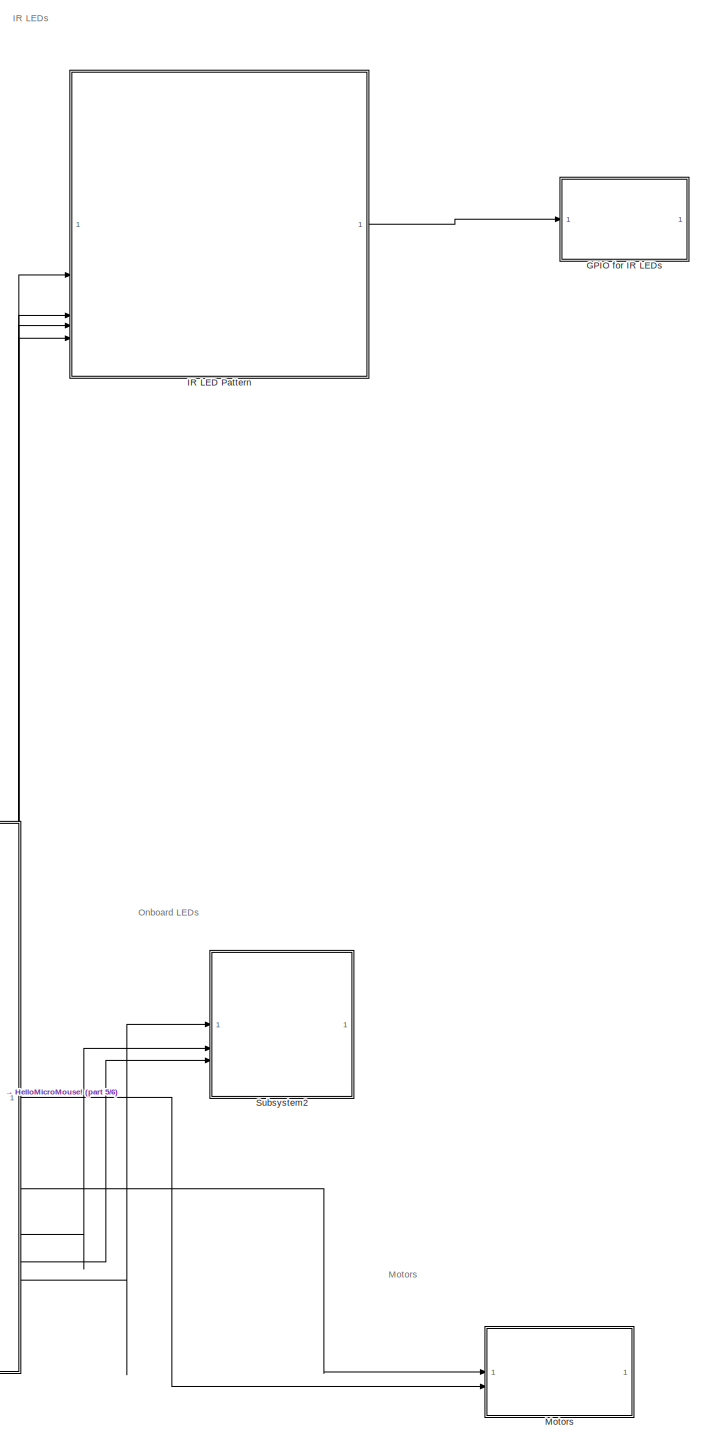
[diagram: root canvas - part 1/6, right side, full height]
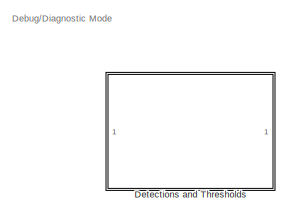
[diagram: root canvas - part 2/6, middle right region]
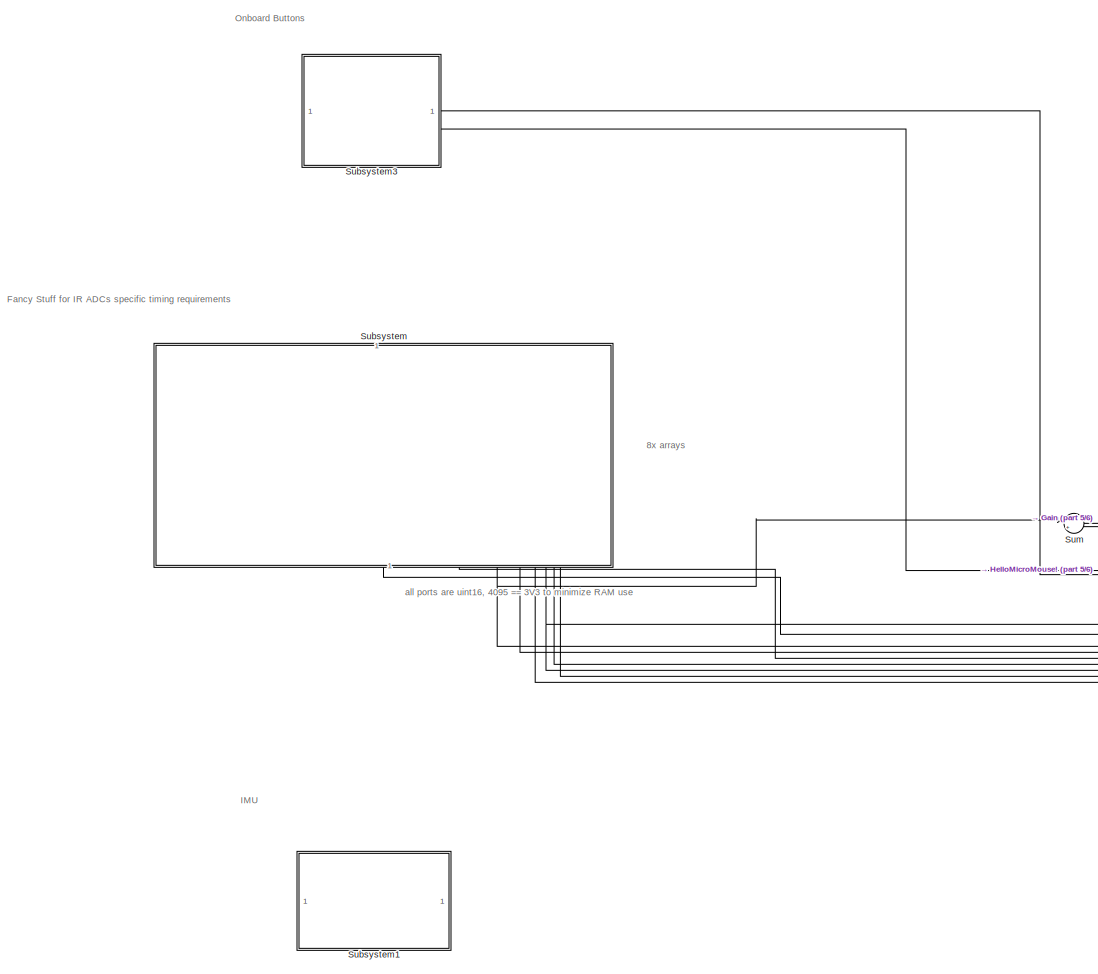
[diagram: root canvas - part 3/6, bottom left region]
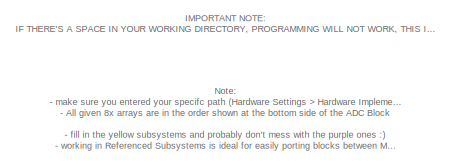
[diagram: root canvas - part 4/6, middle left region]
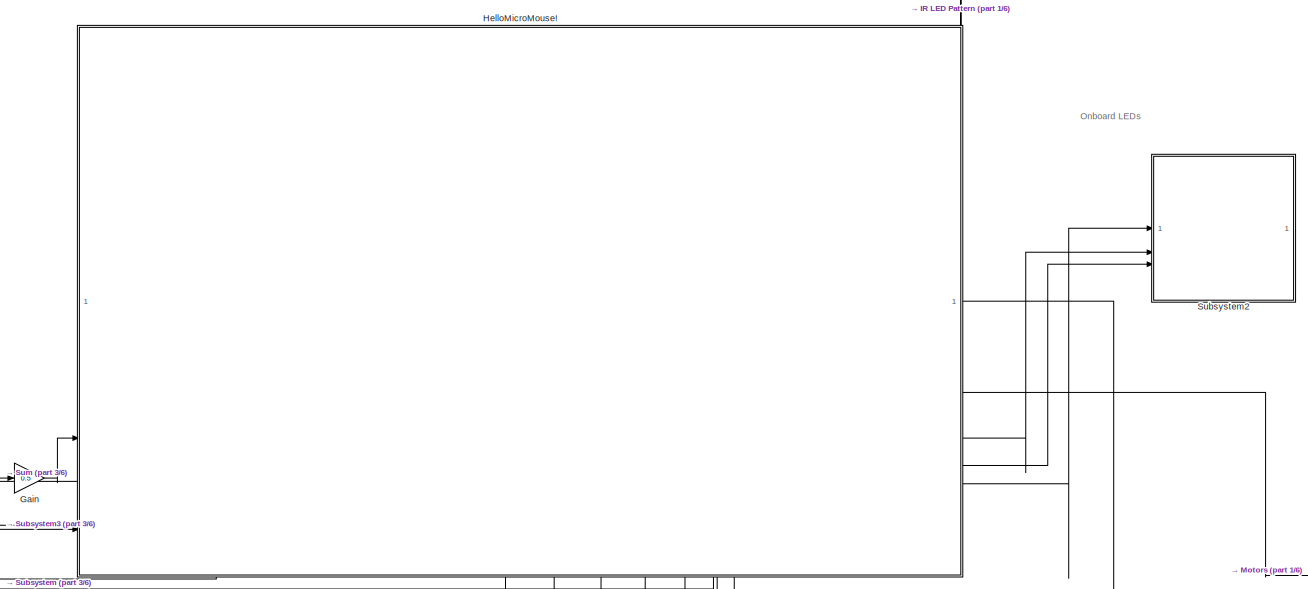
[diagram: root canvas - part 5/6, central region]
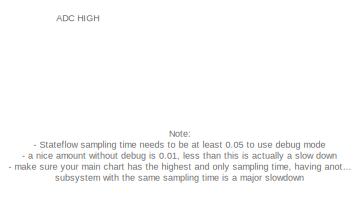
[diagram: root canvas - part 6/6, bottom center region]
MODEL slx_e1ad837b656b
KIND model
CONFIG AbsTol = auto
CONFIG EnableMultiTasking = on
CONFIG FixedStep = auto
CONFIG MaxStep = auto
CONFIG MinStep = auto
CONFIG RelTol = 1e-3
CONFIG SampleTimeConstraint = Unconstrained
CONFIG SolverName = FixedStepAuto
CONFIG StartTime = 0.0
CONFIG StopTime = 10.0
BLOCK [SubSystem] Detections and Thresholds
  ReferencedSubsystem = DiagnosticMode
BLOCK [SubSystem] GPIO for IR LEDs
  ReferencedSubsystem = IR_LEDs
  SystemSampleTime = samplingTime
  TreatAsAtomicUnit = on
BLOCK [Gain] Gain
  Gain = 0.5
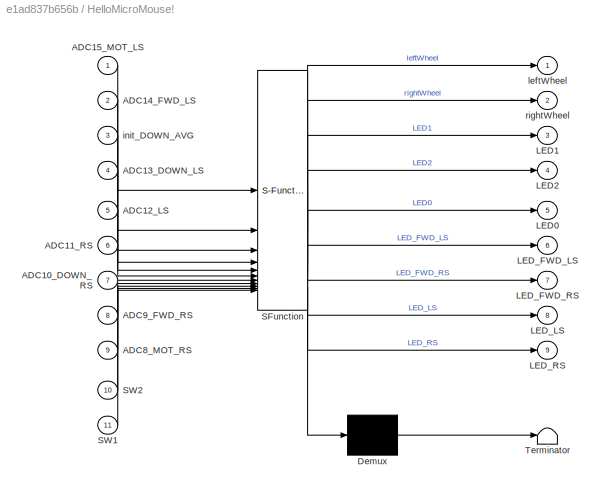
BLOCK [SubSystem] HelloMicroMouse!
  ErrorFcn = Stateflow.Translate.translate
  PermitHierarchicalResolution = ExplicitOnly
  PortSchema = {"entries":[{"content":{"sides":[{"content":{"connectorIds":["In11","In10","In3"]},"type":"ConnectorPlacement.EquallySpacedRectSide","uuid":"f52daa4f-6374-42e5-9ef1-0ccc99d09b58"},{"content":{"connectorIds":["Out5","Out3","Out4","Out2","Out1"],"side":"RIGHT"},"type":"ConnectorPlacement.EquallySpacedRectSide","uuid":"94b478cc-4dde-45c7-a588-77cf2b43cdb7"},{"content":{"connectorIds":["Out6","Out7","...<+500ch>
  SFBlockType = Chart
  SystemSampleTime = 0.05
  TreatAsAtomicUnit = on
BLOCK [Demux] HelloMicroMouse!/ Demux 
  Outputs = 1
BLOCK [S-Function] HelloMicroMouse!/ SFunction 
  EnableBusSupport = on
  FunctionName = sf_sfun
  PortCounts = [11 10]
  SFcnIsStateOwnerBlock = off
  SFunctionDeploymentMode = off
  Tag = Stateflow S-Function 2
BLOCK [Terminator] HelloMicroMouse!/ Terminator 
BLOCK [Inport] HelloMicroMouse!/ADC10_DOWN_RS
  Port = 7
BLOCK [Inport] HelloMicroMouse!/ADC11_RS
  Port = 6
BLOCK [Inport] HelloMicroMouse!/ADC12_LS
  Port = 5
BLOCK [Inport] HelloMicroMouse!/ADC13_DOWN_LS
  Port = 4
BLOCK [Inport] HelloMicroMouse!/ADC14_FWD_LS
  Port = 2
BLOCK [Inport] HelloMicroMouse!/ADC15_MOT_LS
BLOCK [Inport] HelloMicroMouse!/ADC8_MOT_RS
  Port = 9
BLOCK [Inport] HelloMicroMouse!/ADC9_FWD_RS
  Port = 8
BLOCK [Outport] HelloMicroMouse!/LED0
  Port = 5
BLOCK [Outport] HelloMicroMouse!/LED1
  Port = 3
BLOCK [Outport] HelloMicroMouse!/LED2
  Port = 4
BLOCK [Outport] HelloMicroMouse!/LED_FWD_LS
  Port = 6
BLOCK [Outport] HelloMicroMouse!/LED_FWD_RS
  Port = 7
BLOCK [Outport] HelloMicroMouse!/LED_LS
  Port = 8
BLOCK [Outport] HelloMicroMouse!/LED_RS
  Port = 9
BLOCK [Inport] HelloMicroMouse!/SW1
  Port = 11
BLOCK [Inport] HelloMicroMouse!/SW2
  Port = 10
BLOCK [Inport] HelloMicroMouse!/init_DOWN_AVG
  Port = 3
BLOCK [Outport] HelloMicroMouse!/leftWheel
BLOCK [Outport] HelloMicroMouse!/rightWheel
  Port = 2
BLOCK [SubSystem] IR LED Pattern
  ReferencedSubsystem = IR_LED_Pattern
BLOCK [SubSystem] Motors
  PortSchema = {"entries":[{"content":{"sides":[{"content":{"connectorIds":["In2","In1"]},"type":"ConnectorPlacement.EquallySpacedRectSide","uuid":"b3741f01-871a-479c-9206-f0581f668097"},{"content":{"side":"RIGHT"},"type":"ConnectorPlacement.EquallySpacedRectSide","uuid":"4e24163a-f10e-40fa-a35f-86add3e4876d"},{"content":{"side":"TOP"},"type":"ConnectorPlacement.EquallySpacedRectSide","uuid":"20b900cb-8f31-42f3-...<+204ch>
  ReferencedSubsystem = Motors
BLOCK [SubSystem] Subsystem
  PortSchema = {"entries":[{"content":{"sides":[{"content":{},"type":"ConnectorPlacement.EquallySpacedRectSide","uuid":"be6b81d5-7a49-4e34-b35f-0c07892094fc"},{"content":{"connectorIds":["Out1","Out2","Out3","Out4","Out5","Out6","Out7","Out8"],"side":"RIGHT"},"type":"ConnectorPlacement.EquallySpacedRectSide","uuid":"5e22590a-b7c0-4c63-8de4-8d81fd6c3849"},{"content":{"connectorIds":["Out12","Out10","Out11"],"side...<+440ch>
  ReferencedSubsystem = ADC_Block
BLOCK [SubSystem] Subsystem1
  ReferencedSubsystem = IMU
BLOCK [SubSystem] Subsystem2
  ReferencedSubsystem = LEDs
BLOCK [SubSystem] Subsystem3
  ReferencedSubsystem = SWs
BLOCK [Sum] Sum
  Inputs = |++
ANNOTATION (root): 8x arrays
ANNOTATION (root): IMPORTANT NOTE: IF THERE'S A SPACE IN YOUR WORKING DIRECTORY, PROGRAMMING WILL NOT WORK, THIS INCLUDES A SPACE IN YOUR PC's USERNAME (Space is an argument delimiter for terminal things)
ANNOTATION (root): Note: - Stateflow sampling time needs to be at least 0.05 to use debug mode - a nice amount without debug is 0.01, less than this is actually a slow down - make sure your main chart has the highest and only sampling time, having another subsystem with the same sampling time is a major slowdown
ANNOTATION (root): ADC HIGH
ANNOTATION (root): Debug/Diagnostic Mode
ANNOTATION (root): Fancy Stuff for IR ADCs specific timing requirements
ANNOTATION (root): IMU
ANNOTATION (root): IR LEDs
ANNOTATION (root): Motors
ANNOTATION (root): Note: - make sure you entered your specifc path (Hardware Settings > Hardware Implementation) to the given MicroMouseProgramming.ioc - All given 8x arrays are in the order shown at the bottom side of the ADC Block - fill in the yellow subsystems and probably don't mess with the purple ones :) - working in Referenced Subsystems is ideal for easily porting blocks between MATLAB instances, and openin...<+127ch>
ANNOTATION (root): Onboard Buttons
ANNOTATION (root): Onboard LEDs
ANNOTATION (root): all ports are uint16, 4095 == 3V3 to minimize RAM use
LINE Gain:1 -> HelloMicroMouse!:3
LINE HelloMicroMouse!:1 -> Motors:2
LINE HelloMicroMouse!:2 -> Motors:1
LINE HelloMicroMouse!:3 -> Subsystem2:2
LINE HelloMicroMouse!:4 -> Subsystem2:3
LINE HelloMicroMouse!:5 -> Subsystem2:1
LINE HelloMicroMouse!:6 -> IR LED Pattern:2
LINE HelloMicroMouse!:7 -> IR LED Pattern:7
LINE HelloMicroMouse!:8 -> IR LED Pattern:4
LINE HelloMicroMouse!:9 -> IR LED Pattern:5
LINE IR LED Pattern:1 -> GPIO for IR LEDs:1
LINE Subsystem3:1 -> HelloMicroMouse!:11
LINE Subsystem3:2 -> HelloMicroMouse!:10
LINE Subsystem:1 -> HelloMicroMouse!:9
LINE Subsystem:2 -> HelloMicroMouse!:8
NET Subsystem:3 -> HelloMicroMouse!:7, Sum:1
LINE Subsystem:4 -> HelloMicroMouse!:6
LINE Subsystem:5 -> HelloMicroMouse!:5
NET Subsystem:6 -> HelloMicroMouse!:4, Sum:2
LINE Subsystem:7 -> HelloMicroMouse!:2
LINE Subsystem:8 -> HelloMicroMouse!:1
LINE Sum:1 -> Gain:1
note: NET lines group one-source signal fan-out (src -> all destinations, sorted); 1:1 wires keep LINE
CHART HelloMicroMouse! states=15 transitions=26
  STATE_LABEL 'Calibration_Sides\nentry:\n    counter = 0\n    sum_LEFT = 0;\n    sum_RIGHT = 0;\n    min_LEFT = ADC12_LS;\n    min_RIGHT = ADC11_RS;\nduring:\n    % Collect ADC values for averaging\n    if counter < 100\n        min_LEFT = min(min_LEFT, ADC12_LS);\n        min_RIGHT = min(min_RIGHT, ADC11_RS);\n        sum_LEFT = sum_LEFT + min_LEFT;\n        sum_RIGHT = sum_RIGHT + min_RIGHT;\n        counter = counter + 1;...<+288ch>'
  STATE_LABEL 'CalibrationForward\nentry:\ncounter = 0\nsum_FWD_LEFT = 0;\nsum_FWD_RIGHT = 0;\nleftWheel = 75;\nrightWheel = -75;\nLED_FWD_RS = 1;\nLED_FWD_LS = 1;\nduring:\n    % Collect ADC values for averaging\n    leftWheel = leftWheel*(-1);\n    rightWheel = rightWheel*(-1);\n    if counter < 100\n        sum_FWD_LEFT = sum_FWD_LEFT + ADC14_FWD_LS;\n        sum_FWD_RIGHT = sum_FWD_RIGHT + ADC9_FWD_RS;\n        counter = co...<+476ch>'
  STATE_LABEL 'ButtonPressed3\nentry:\nLED0 = ~LED0;\nLED1 = ~LED1;\nLED2 = ~LED2;\n'
  STATE_LABEL 'Driving\nentry:\ntimer = 0;\nduring:\ntimer = timer +1;\n'
  STATE_LABEL 'Turning_Right_Adjustment\nentry:\nleftWheel = 70;\nrightWheel = 75;\n'
  STATE_LABEL 'Forward\nentry:\nLED0 = false;\nLED1 = false;\nLED2 = false;\n% if abs(ADC13_DOWN_LS - ADC10_DOWN_RS) > down_error\n%    error = true;\n%    check = max(ADC13_DOWN_LS - thresh_down_l, ADC10_DOWN_RS - thresh_down_r)\n%end\nleftWheel = normal_speed_LEFT;\nrightWheel = normal_speed_RIGHT;\nexit:\n% during:\n% curr_d_left = ADC13_DOWN_LS;\n% curr_d_right = ADC10_DOWN_RS;\n% if abs(curr_d_left - curr_d_right) > down_...<+114ch>'  <repeated x3 — deduplicated; at blocks: HelloMicroMouse!>
  STATE_LABEL 'Turning_Left_Adjustment\nentry:\nrightWheel = 70;\nleftWheel = 75;'
  STATE_LABEL '[ADC13_DOWN_LS > thresh_DOWN_LEFT ]'
  STATE_LABEL '[ADC10_DOWN_RS<thresh_DOWN_RIGHT && ADC13_DOWN_LS< thresh_DOWN_LEFT]'
  STATE_LABEL '[ADC10_DOWN_RS > thresh_DOWN_RIGHT]'
  STATE_LABEL '[ADC13_DOWN_LS > thresh_DOWN_LEFT ]'
  STATE_LABEL '[ADC10_DOWN_RS > thresh_DOWN_RIGHT]'
  STATE_LABEL '[ADC10_DOWN_RS<thresh_DOWN_RIGHT && ADC13_DOWN_LS< thresh_DOWN_LEFT]'
  STATE_LABEL 'turnLeft\nentry:\nLED0 = true;\nLED1 = false;\nLED2 = false;\nleftWheel = 0;\nrightWheel = 85;'
  STATE_LABEL 'CrossDetection\nentry:\n    leftWheel = 0;\n    rightWheel = 0;\n    LED0 = true;\n    LED1 = true;\n    LED2 = true;\n    LEDtimer = 0;\n    LEDtimer1 = 0;\n    processDone = 0;\n    frontClear = false;\n    leftClear = false;\n    rightClear = false;\nduring:\n% Control the LEDs\nLED_LS = 1;\nLED_RS = 1;\nLED_FWD_RS = 0;  % Only turn these on after processing side sensors\nLED_FWD_LS = 0;\n% Update LED timer only ...<+1493ch>'
  STATE_LABEL 'turnRight\nentry:\nLED0 = false;\nLED1 = false;\nLED2 = true;\nleftWheel = 85;\nrightWheel = 0;'
  STATE_LABEL 'turnBack\nentry:\nLED0 = false;\nLED1 = true;\nLED2 = false;\nleftWheel =-75;\nrightWheel = 75;'
  STATE_LABEL 'after(2100,msec)'
  STATE_LABEL 'after(1300,msec)'
  STATE_LABEL '[init_DOWN_AVG<thresh_DOWN_AVG && timer >=25 ]'
  STATE_LABEL '[crossroadCondition == 7]'
  STATE_LABEL '[crossroadCondition == 1]'
  STATE_LABEL 'after(1300,msec)'
  STATE_LABEL '[crossroadCondition == 3]'
  STATE_LABEL '[crossroadCondition == 5]'
  STATE_LABEL '[crossroadCondition == 6]'
  STATE_LABEL '[crossroadCondition == 2]'
  STATE_LABEL '[crossroadCondition == 4]'
  STATE_LABEL 'Driving\nentry:\ntimer = 0;\nduring:\ntimer = timer +1;\n'
  STATE_LABEL 'Turning_Right_Adjustment\nentry:\nleftWheel = 70;\nrightWheel = 75;\n'
  STATE_LABEL 'Turning_Left_Adjustment\nentry:\nrightWheel = 70;\nleftWheel = 75;'
  STATE_LABEL '[ADC13_DOWN_LS > thresh_DOWN_LEFT ]'
  STATE_LABEL '[ADC10_DOWN_RS<thresh_DOWN_RIGHT && ADC13_DOWN_LS< thresh_DOWN_LEFT]'
  STATE_LABEL '[ADC10_DOWN_RS > thresh_DOWN_RIGHT]'
  STATE_LABEL '[ADC13_DOWN_LS > thresh_DOWN_LEFT ]'
  STATE_LABEL '[ADC10_DOWN_RS > thresh_DOWN_RIGHT]'
  STATE_LABEL '[ADC10_DOWN_RS<thresh_DOWN_RIGHT && ADC13_DOWN_LS< thresh_DOWN_LEFT]'
  STATE_LABEL 'Turning_Right_Adjustment\nentry:\nleftWheel = 70;\nrightWheel = 75;\n'
CHART  states=0 transitions=0
